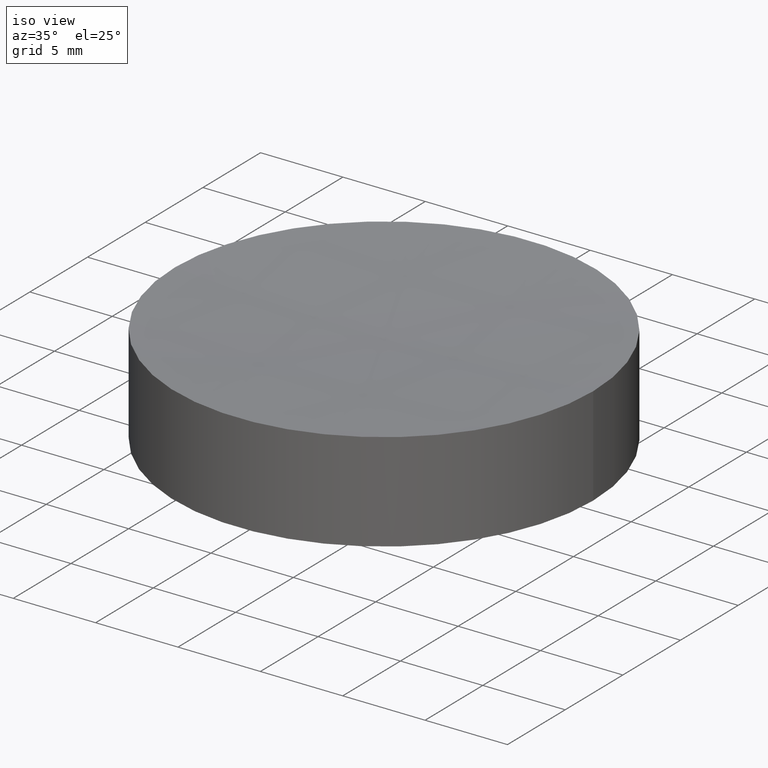
[diagram: clean part render]
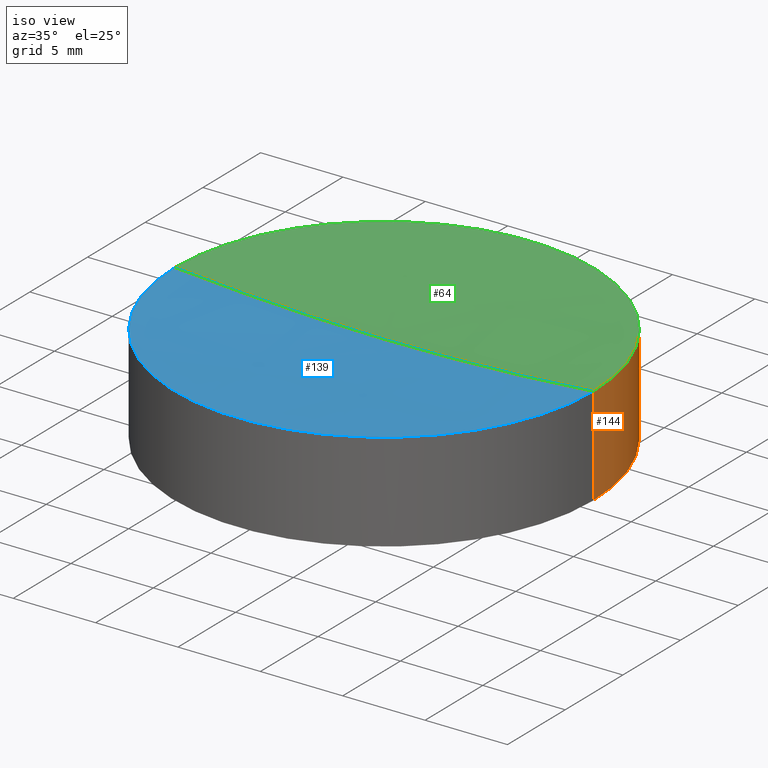
[diagram: same view with three faces highlighted in distinct colors, each labeled with its STEP entity id]
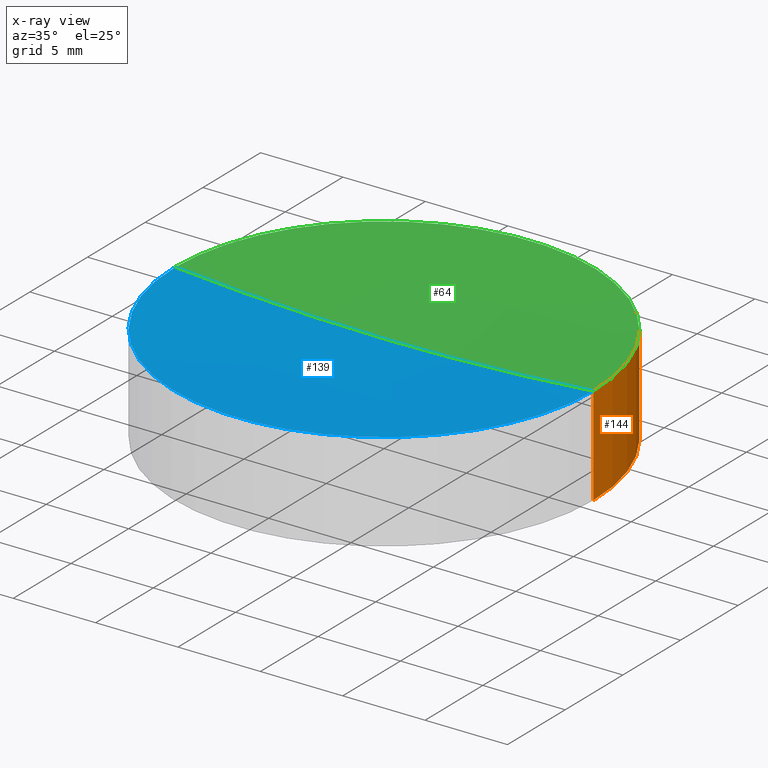
[diagram: x-ray of the same camera — body ghosted, the three highlighted faces saturated]
A machine part, iso view with three faces highlighted in distinct colors.
The next image is the same camera in x-ray (body ghosted, the three faces saturated) — at least one of them is partly hidden behind the body in this view.
Their STEP definitions:

[orange] entity #144 — the highlighted cylindrical surface (partial cylindrical patch) has radius 12.7 mm, axis along (-0, -0, -1).
#3 = DIRECTION ( 'NONE',  ( 0.000000000000000000, 0.000000000000000000, 1.000000000000000000 ) ) ;
#9 = FACE_OUTER_BOUND ( 'NONE', #84, .T. ) ;
#17 = EDGE_CURVE ( 'NONE', #104, #27, #39, .T. ) ;
#27 = VERTEX_POINT ( 'NONE', #32 ) ;
#31 = DIRECTION ( 'NONE',  ( -0.000000000000000000, -0.000000000000000000, -1.000000000000000000 ) ) ;
#32 = CARTESIAN_POINT ( 'NONE',  ( 12.70000000000007923, 1.555301434917148096E-15, 6.000000000000005329 ) ) ;
#39 = CIRCLE ( 'NONE', #141, 12.70000000000005613 ) ;
#44 = VERTEX_POINT ( 'NONE', #159 ) ;
#46 = DIRECTION ( 'NONE',  ( 1.000000000000000000, 0.000000000000000000, 0.000000000000000000 ) ) ;
#53 = EDGE_CURVE ( 'NONE', #44, #158, #122, .T. ) ;
#57 = CYLINDRICAL_SURFACE ( 'NONE', #148, 12.69999999999999929 ) ;
#61 = CARTESIAN_POINT ( 'NONE',  ( -12.69999999999999929, 0.000000000000000000, 6.000000000000000000 ) ) ;
#71 = CARTESIAN_POINT ( 'NONE',  ( -12.69999999999999929, 0.000000000000000000, 0.000000000000000000 ) ) ;
#76 = DIRECTION ( 'NONE',  ( -0.000000000000000000, -0.000000000000000000, -1.000000000000000000 ) ) ;
#78 = DIRECTION ( 'NONE',  ( -0.000000000000000000, -0.000000000000000000, -1.000000000000000000 ) ) ;
#79 = AXIS2_PLACEMENT_3D ( 'NONE', #190, #3, #174 ) ;
#81 = ORIENTED_EDGE ( 'NONE', *, *, #97, .F. ) ;
#84 = EDGE_LOOP ( 'NONE', ( #106, #173, #119, #81 ) ) ;
#90 = LINE ( 'NONE', #61, #107 ) ;
#97 = EDGE_CURVE ( 'NONE', #104, #158, #90, .T. ) ;
#101 = CARTESIAN_POINT ( 'NONE',  ( 0.000000000000000000, 0.000000000000000000, 6.000000000000000000 ) ) ;
#104 = VERTEX_POINT ( 'NONE', #186 ) ;
#105 = LINE ( 'NONE', #198, #178 ) ;
#106 = ORIENTED_EDGE ( 'NONE', *, *, #17, .T. ) ;
#107 = VECTOR ( 'NONE', #78, 1000.000000000000000 ) ;
#110 = EDGE_CURVE ( 'NONE', #27, #44, #105, .T. ) ;
#119 = ORIENTED_EDGE ( 'NONE', *, *, #53, .T. ) ;
#122 = CIRCLE ( 'NONE', #79, 12.69999999999999929 ) ;
#133 = DIRECTION ( 'NONE',  ( -0.000000000000000000, -0.000000000000000000, -1.000000000000000000 ) ) ;
#141 = AXIS2_PLACEMENT_3D ( 'NONE', #183, #31, #46 ) ;
#144 = ADVANCED_FACE ( 'NONE', ( #9 ), #57, .T. ) ;
#148 = AXIS2_PLACEMENT_3D ( 'NONE', #101, #76, #151 ) ;
#151 = DIRECTION ( 'NONE',  ( -1.000000000000000000, 0.000000000000000000, 0.000000000000000000 ) ) ;
#158 = VERTEX_POINT ( 'NONE', #71 ) ;
#159 = CARTESIAN_POINT ( 'NONE',  ( 12.69999999999999929, 1.555301434917138433E-15, 0.000000000000000000 ) ) ;
#173 = ORIENTED_EDGE ( 'NONE', *, *, #110, .T. ) ;
#174 = DIRECTION ( 'NONE',  ( 1.000000000000000000, 0.000000000000000000, 0.000000000000000000 ) ) ;
#178 = VECTOR ( 'NONE', #133, 1000.000000000000000 ) ;
#183 = CARTESIAN_POINT ( 'NONE',  ( 2.081668171172168513E-14, 0.000000000000000000, 6.000000000000005329 ) ) ;
#186 = CARTESIAN_POINT ( 'NONE',  ( -12.70000000000003659, 0.000000000000000000, 6.000000000000005329 ) ) ;
#190 = CARTESIAN_POINT ( 'NONE',  ( 0.000000000000000000, 0.000000000000000000, 0.000000000000000000 ) ) ;
#198 = CARTESIAN_POINT ( 'NONE',  ( 12.69999999999999929, 1.555301434917138433E-15, 6.000000000000000000 ) ) ;

[blue] entity #139 — the highlighted spherical surface has radius 150 mm.
#2 = AXIS2_PLACEMENT_3D ( 'NONE', #51, #128, #179 ) ;
#6 = CARTESIAN_POINT ( 'NONE',  ( 3.000153270532683387E-14, 0.000000000000000000, 5.461399699052737589 ) ) ;
#13 = DIRECTION ( 'NONE',  ( 1.224646799147353207E-16, -1.000000000000000000, 0.000000000000000000 ) ) ;
#15 = EDGE_LOOP ( 'NONE', ( #80, #170, #96 ) ) ;
#16 = DIRECTION ( 'NONE',  ( 0.000000000000000000, 0.000000000000000000, 1.000000000000000000 ) ) ;
#27 = VERTEX_POINT ( 'NONE', #32 ) ;
#32 = CARTESIAN_POINT ( 'NONE',  ( 12.70000000000007923, 1.555301434917148096E-15, 6.000000000000005329 ) ) ;
#35 = AXIS2_PLACEMENT_3D ( 'NONE', #155, #13, #201 ) ;
#38 = EDGE_CURVE ( 'NONE', #27, #157, #111, .T. ) ;
#47 = EDGE_CURVE ( 'NONE', #104, #157, #49, .T. ) ;
#49 = CIRCLE ( 'NONE', #35, 150.0000000000000000 ) ;
#51 = CARTESIAN_POINT ( 'NONE',  ( 2.081668171172168513E-14, 0.000000000000000000, 6.000000000000005329 ) ) ;
#54 = AXIS2_PLACEMENT_3D ( 'NONE', #95, #121, #16 ) ;
#59 = DIRECTION ( 'NONE',  ( 0.000000000000000000, -1.000000000000000000, -0.000000000000000000 ) ) ;
#67 = CIRCLE ( 'NONE', #2, 12.70000000000005613 ) ;
#80 = ORIENTED_EDGE ( 'NONE', *, *, #47, .F. ) ;
#87 = AXIS2_PLACEMENT_3D ( 'NONE', #116, #59, #181 ) ;
#93 = SPHERICAL_SURFACE ( 'NONE', #87, 150.0000000000000000 ) ;
#95 = CARTESIAN_POINT ( 'NONE',  ( 2.081668171172168513E-14, 0.000000000000000000, 155.4613996990527198 ) ) ;
#96 = ORIENTED_EDGE ( 'NONE', *, *, #38, .T. ) ;
#104 = VERTEX_POINT ( 'NONE', #186 ) ;
#111 = CIRCLE ( 'NONE', #54, 150.0000000000000000 ) ;
#116 = CARTESIAN_POINT ( 'NONE',  ( 2.081668171172168513E-14, 0.000000000000000000, 155.4613996990527198 ) ) ;
#121 = DIRECTION ( 'NONE',  ( 0.000000000000000000, 1.000000000000000000, -0.000000000000000000 ) ) ;
#128 = DIRECTION ( 'NONE',  ( -0.000000000000000000, -0.000000000000000000, -1.000000000000000000 ) ) ;
#139 = ADVANCED_FACE ( 'NONE', ( #172 ), #93, .F. ) ;
#155 = CARTESIAN_POINT ( 'NONE',  ( 2.081668171172168513E-14, 0.000000000000000000, 155.4613996990527198 ) ) ;
#157 = VERTEX_POINT ( 'NONE', #6 ) ;
#170 = ORIENTED_EDGE ( 'NONE', *, *, #171, .F. ) ;
#171 = EDGE_CURVE ( 'NONE', #27, #104, #67, .T. ) ;
#172 = FACE_OUTER_BOUND ( 'NONE', #15, .T. ) ;
#179 = DIRECTION ( 'NONE',  ( 1.000000000000000000, 0.000000000000000000, 0.000000000000000000 ) ) ;
#181 = DIRECTION ( 'NONE',  ( 1.000000000000000000, 0.000000000000000000, 0.000000000000000000 ) ) ;
#186 = CARTESIAN_POINT ( 'NONE',  ( -12.70000000000003659, 0.000000000000000000, 6.000000000000005329 ) ) ;
#201 = DIRECTION ( 'NONE',  ( 1.000000000000000000, 1.224646799147353207E-16, 0.000000000000000000 ) ) ;

[green] entity #64 — the highlighted spherical surface has radius 150 mm.
#6 = CARTESIAN_POINT ( 'NONE',  ( 3.000153270532683387E-14, 0.000000000000000000, 5.461399699052737589 ) ) ;
#13 = DIRECTION ( 'NONE',  ( 1.224646799147353207E-16, -1.000000000000000000, 0.000000000000000000 ) ) ;
#16 = DIRECTION ( 'NONE',  ( 0.000000000000000000, 0.000000000000000000, 1.000000000000000000 ) ) ;
#17 = EDGE_CURVE ( 'NONE', #104, #27, #39, .T. ) ;
#18 = FACE_OUTER_BOUND ( 'NONE', #94, .T. ) ;
#25 = DIRECTION ( 'NONE',  ( 1.000000000000000000, 0.000000000000000000, 0.000000000000000000 ) ) ;
#27 = VERTEX_POINT ( 'NONE', #32 ) ;
#31 = DIRECTION ( 'NONE',  ( -0.000000000000000000, -0.000000000000000000, -1.000000000000000000 ) ) ;
#32 = CARTESIAN_POINT ( 'NONE',  ( 12.70000000000007923, 1.555301434917148096E-15, 6.000000000000005329 ) ) ;
#35 = AXIS2_PLACEMENT_3D ( 'NONE', #155, #13, #201 ) ;
#37 = AXIS2_PLACEMENT_3D ( 'NONE', #62, #136, #25 ) ;
#38 = EDGE_CURVE ( 'NONE', #27, #157, #111, .T. ) ;
#39 = CIRCLE ( 'NONE', #141, 12.70000000000005613 ) ;
#42 = ORIENTED_EDGE ( 'NONE', *, *, #38, .F. ) ;
#46 = DIRECTION ( 'NONE',  ( 1.000000000000000000, 0.000000000000000000, 0.000000000000000000 ) ) ;
#47 = EDGE_CURVE ( 'NONE', #104, #157, #49, .T. ) ;
#49 = CIRCLE ( 'NONE', #35, 150.0000000000000000 ) ;
#54 = AXIS2_PLACEMENT_3D ( 'NONE', #95, #121, #16 ) ;
#62 = CARTESIAN_POINT ( 'NONE',  ( 2.081668171172168513E-14, 0.000000000000000000, 155.4613996990527198 ) ) ;
#64 = ADVANCED_FACE ( 'NONE', ( #18 ), #102, .F. ) ;
#82 = ORIENTED_EDGE ( 'NONE', *, *, #17, .F. ) ;
#92 = ORIENTED_EDGE ( 'NONE', *, *, #47, .T. ) ;
#94 = EDGE_LOOP ( 'NONE', ( #82, #92, #42 ) ) ;
#95 = CARTESIAN_POINT ( 'NONE',  ( 2.081668171172168513E-14, 0.000000000000000000, 155.4613996990527198 ) ) ;
#102 = SPHERICAL_SURFACE ( 'NONE', #37, 150.0000000000000000 ) ;
#104 = VERTEX_POINT ( 'NONE', #186 ) ;
#111 = CIRCLE ( 'NONE', #54, 150.0000000000000000 ) ;
#121 = DIRECTION ( 'NONE',  ( 0.000000000000000000, 1.000000000000000000, -0.000000000000000000 ) ) ;
#136 = DIRECTION ( 'NONE',  ( 0.000000000000000000, -1.000000000000000000, -0.000000000000000000 ) ) ;
#141 = AXIS2_PLACEMENT_3D ( 'NONE', #183, #31, #46 ) ;
#155 = CARTESIAN_POINT ( 'NONE',  ( 2.081668171172168513E-14, 0.000000000000000000, 155.4613996990527198 ) ) ;
#157 = VERTEX_POINT ( 'NONE', #6 ) ;
#183 = CARTESIAN_POINT ( 'NONE',  ( 2.081668171172168513E-14, 0.000000000000000000, 6.000000000000005329 ) ) ;
#186 = CARTESIAN_POINT ( 'NONE',  ( -12.70000000000003659, 0.000000000000000000, 6.000000000000005329 ) ) ;
#201 = DIRECTION ( 'NONE',  ( 1.000000000000000000, 1.224646799147353207E-16, 0.000000000000000000 ) ) ;